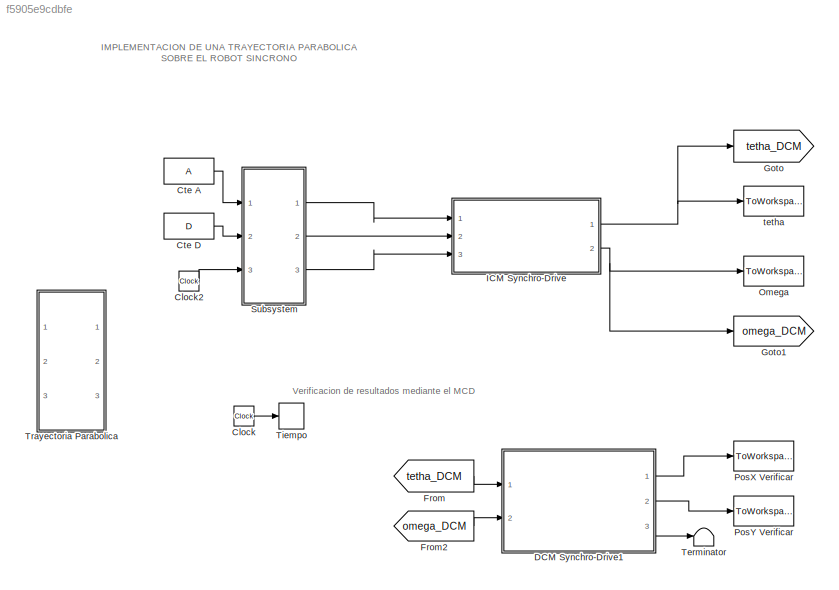
MODEL slx_f5905e9cdbfe
KIND model
CONFIG AbsTol = auto
CONFIG EnableMultiTasking = off
CONFIG FixedStep = auto
CONFIG MaxStep = auto
CONFIG MinStep = auto
CONFIG RelTol = 1e-3
CONFIG SampleTimeConstraint = Unconstrained
CONFIG Solver = VariableStepAuto
CONFIG SolverName = VariableStepAuto
CONFIG StartTime = 0.0
CONFIG StopTime = t_sim
BLOCK [Clock] Clock
BLOCK [Clock] Clock2
BLOCK [Constant] Cte A
  Value = A
BLOCK [Constant] Cte D
  Value = D
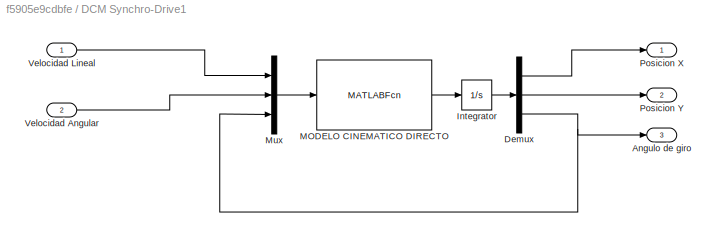
BLOCK [SubSystem] DCM Synchro-Drive1
  Ports = [2, 3]
  RequestExecContextInheritance = off
  Variant = off
BLOCK [Outport] DCM Synchro-Drive1/Angulo de giro
  IconDisplay = Port number
  Port = 3
BLOCK [Demux] DCM Synchro-Drive1/Demux
  DisplayOption = bar
  Outputs = 3
  Ports = [1, 3]
BLOCK [Integrator] DCM Synchro-Drive1/Integrator
  InitialCondition = pos_init
  Ports = [1, 1]
BLOCK [MATLABFcn] DCM Synchro-Drive1/MODELO CINEMATICO DIRECTO
  MATLABFcn = MCD_movil
  OutputDimensions = 3
  Ports = [1, 1]
BLOCK [Mux] DCM Synchro-Drive1/Mux
  DisplayOption = bar
  Inputs = 3
  Ports = [3, 1]
BLOCK [Outport] DCM Synchro-Drive1/Posicion X
  IconDisplay = Port number
BLOCK [Outport] DCM Synchro-Drive1/Posicion Y
  IconDisplay = Port number
  Port = 2
BLOCK [Inport] DCM Synchro-Drive1/Velocidad Angular
  IconDisplay = Port number
  Port = 2
BLOCK [Inport] DCM Synchro-Drive1/Velocidad Lineal
  IconDisplay = Port number
BLOCK [From] From
  GotoTag = tetha_DCM
  IconDisplay = Tag and signal name
BLOCK [From] From2
  GotoTag = omega_DCM
BLOCK [Goto] Goto
  GotoTag = tetha_DCM
BLOCK [Goto] Goto1
  GotoTag = omega_DCM
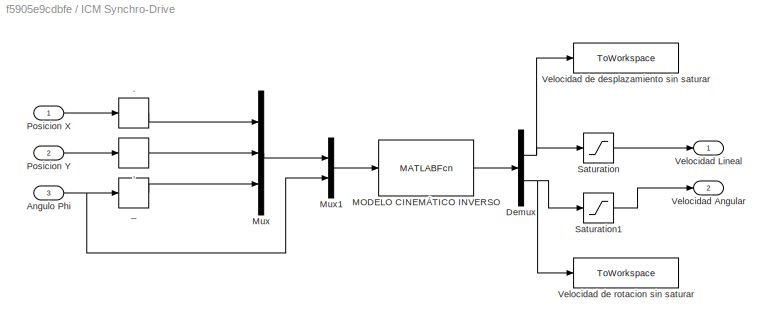
BLOCK [SubSystem] ICM Synchro-Drive
  Ports = [3, 2]
  RequestExecContextInheritance = off
  Variant = off
BLOCK [Inport] ICM Synchro-Drive/ Posicion X 
  IconDisplay = Port number
BLOCK [Derivative] ICM Synchro-Drive/,
BLOCK [Derivative] ICM Synchro-Drive/.
BLOCK [Inport] ICM Synchro-Drive/Angulo Phi
  IconDisplay = Port number
  Port = 3
BLOCK [Demux] ICM Synchro-Drive/Demux
  DisplayOption = bar
  Outputs = 2
  Ports = [1, 2]
BLOCK [MATLABFcn] ICM Synchro-Drive/MODELO CINEMÁTICO INVERSO
  MATLABFcn = MCI_movil
  OutputDimensions = 2
  Ports = [1, 1]
BLOCK [Mux] ICM Synchro-Drive/Mux
  DisplayOption = bar
  Inputs = 3
  Ports = [3, 1]
BLOCK [Mux] ICM Synchro-Drive/Mux1
  DisplayOption = bar
  Inputs = 2
  Ports = [2, 1]
BLOCK [Inport] ICM Synchro-Drive/Posicion Y
  IconDisplay = Port number
  Port = 2
BLOCK [Saturate] ICM Synchro-Drive/Saturation
  InputPortMap = u0
  LowerLimit = tetha_d_sat(1)
  Ports = [1, 1]
  UpperLimit = tetha_d_sat(2)
  ZeroCross = off
BLOCK [Saturate] ICM Synchro-Drive/Saturation1
  InputPortMap = u0
  LowerLimit = omega_sat(1)
  Ports = [1, 1]
  UpperLimit = omega_sat(2)
  ZeroCross = off
BLOCK [Outport] ICM Synchro-Drive/Velocidad Angular
  IconDisplay = Port number
  Port = 2
BLOCK [Outport] ICM Synchro-Drive/Velocidad Lineal
  IconDisplay = Port number
BLOCK [ToWorkspace] ICM Synchro-Drive/Velocidad de desplazamiento sin saturar
  FixptAsFi = on
  MaxDataPoints = inf
  Ports = [1]
  SampleTime = -1
  Save2DSignal = 3-D array (concatenate along third dimension)
  VariableName = V_despl_sinsat
BLOCK [ToWorkspace] ICM Synchro-Drive/Velocidad de rotacion sin saturar
  FixptAsFi = on
  MaxDataPoints = inf
  Ports = [1]
  SampleTime = -1
  Save2DSignal = 3-D array (concatenate along third dimension)
  VariableName = V_rot_sinsat
BLOCK [Derivative] ICM Synchro-Drive/_
BLOCK [ToWorkspace] Omega 
  FixptAsFi = on
  MaxDataPoints = inf
  Ports = [1]
  SampleTime = -1
  Save2DSignal = 3-D array (concatenate along third dimension)
  VariableName = omega
BLOCK [ToWorkspace] PosX Verificar
  FixptAsFi = on
  MaxDataPoints = inf
  Ports = [1]
  SampleTime = -1
  Save2DSignal = 3-D array (concatenate along third dimension)
  VariableName = posx_check
BLOCK [ToWorkspace] PosY Verificar
  FixptAsFi = on
  MaxDataPoints = inf
  Ports = [1]
  SampleTime = -1
  Save2DSignal = 3-D array (concatenate along third dimension)
  VariableName = posy_check
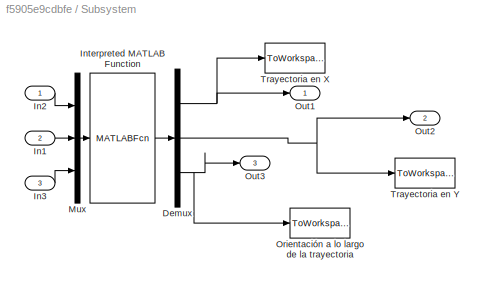
BLOCK [SubSystem] Subsystem
  Ports = [3, 3]
  RequestExecContextInheritance = off
  Variant = off
BLOCK [Demux] Subsystem/Demux
  DisplayOption = bar
  Outputs = 3
  Ports = [1, 3]
BLOCK [Inport] Subsystem/In1
  IconDisplay = Port number
  Port = 2
BLOCK [Inport] Subsystem/In2
  IconDisplay = Port number
BLOCK [Inport] Subsystem/In3
  IconDisplay = Port number
  Port = 3
BLOCK [MATLABFcn] Subsystem/Interpreted MATLAB Function
  MATLABFcn = tray_parab
  OutputDimensions = 3
  Ports = [1, 1]
BLOCK [Mux] Subsystem/Mux
  DisplayOption = bar
  Inputs = 3
  Ports = [3, 1]
BLOCK [ToWorkspace] Subsystem/Orientación a lo largo de la trayectoria
  FixptAsFi = on
  MaxDataPoints = inf
  Ports = [1]
  SampleTime = -1
  Save2DSignal = 3-D array (concatenate along third dimension)
  VariableName = trayec_phi
BLOCK [Outport] Subsystem/Out1
  IconDisplay = Port number
BLOCK [Outport] Subsystem/Out2
  IconDisplay = Port number
  Port = 2
BLOCK [Outport] Subsystem/Out3
  IconDisplay = Port number
  Port = 3
BLOCK [ToWorkspace] Subsystem/Trayectoria en X
  FixptAsFi = on
  MaxDataPoints = inf
  Ports = [1]
  SampleTime = -1
  Save2DSignal = 3-D array (concatenate along third dimension)
  VariableName = trayec_x
BLOCK [ToWorkspace] Subsystem/Trayectoria en Y
  FixptAsFi = on
  MaxDataPoints = inf
  Ports = [1]
  SampleTime = -1
  Save2DSignal = 3-D array (concatenate along third dimension)
  VariableName = trayec_y
BLOCK [Terminator] Terminator
BLOCK [ToWorkspace] Tiempo
  FixptAsFi = on
  MaxDataPoints = inf
  Ports = [1]
  SampleTime = -1
  Save2DSignal = 3-D array (concatenate along third dimension)
  VariableName = t
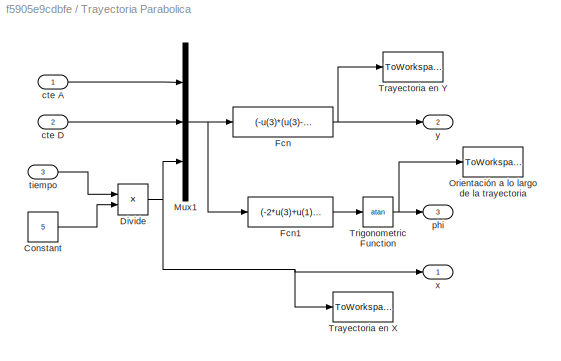
BLOCK [SubSystem] Trayectoria Parabolica 
  Commented = on
  Ports = [3, 3]
  RequestExecContextInheritance = off
  Variant = off
BLOCK [Constant] Trayectoria Parabolica /Constant
  Value = 5
BLOCK [Product] Trayectoria Parabolica /Divide
  InputSameDT = off
  Inputs = */
  OutDataTypeStr = Inherit: Inherit via internal rule
  Ports = [2, 1]
  RndMeth = Floor
  SaturateOnIntegerOverflow = off
BLOCK [Fcn] Trayectoria Parabolica /Fcn
  Expr = (-u(3)*(u(3)-u(1)))/u(2)
BLOCK [Fcn] Trayectoria Parabolica /Fcn1
  Expr = (-2*u(3)+u(1))/u(2)
BLOCK [Mux] Trayectoria Parabolica /Mux1
  DisplayOption = bar
  Inputs = 3
  Ports = [3, 1]
BLOCK [ToWorkspace] Trayectoria Parabolica /Orientación a lo largo de la trayectoria
  FixptAsFi = on
  MaxDataPoints = inf
  Ports = [1]
  SampleTime = -1
  Save2DSignal = 3-D array (concatenate along third dimension)
  VariableName = trayec_phi
BLOCK [ToWorkspace] Trayectoria Parabolica /Trayectoria en X
  FixptAsFi = on
  MaxDataPoints = inf
  Ports = [1]
  SampleTime = -1
  Save2DSignal = 3-D array (concatenate along third dimension)
  VariableName = trayec_x
BLOCK [ToWorkspace] Trayectoria Parabolica /Trayectoria en Y
  FixptAsFi = on
  MaxDataPoints = inf
  Ports = [1]
  SampleTime = -1
  Save2DSignal = 3-D array (concatenate along third dimension)
  VariableName = trayec_y
BLOCK [Trigonometry] Trayectoria Parabolica /Trigonometric Function
  Operator = atan
  OutputSignalType = real
  Ports = [1, 1]
BLOCK [Inport] Trayectoria Parabolica /cte A
  IconDisplay = Port number
BLOCK [Inport] Trayectoria Parabolica /cte D 
  IconDisplay = Port number
  Port = 2
BLOCK [Outport] Trayectoria Parabolica /phi 
  IconDisplay = Port number
  Port = 3
BLOCK [Inport] Trayectoria Parabolica /tiempo
  IconDisplay = Port number
  Port = 3
BLOCK [Outport] Trayectoria Parabolica /x 
  IconDisplay = Port number
BLOCK [Outport] Trayectoria Parabolica /y 
  IconDisplay = Port number
  Port = 2
BLOCK [ToWorkspace] tetha
  FixptAsFi = on
  MaxDataPoints = inf
  Ports = [1]
  SampleTime = -1
  Save2DSignal = 3-D array (concatenate along third dimension)
  VariableName = tetha_d
ANNOTATION (root): IMPLEMENTACION DE UNA TRAYECTORIA PARABOLICA SOBRE EL ROBOT SINCRONO
ANNOTATION (root): Verificacion de resultados mediante el MCD
LINE Clock2:1 -> Subsystem:3
LINE Clock:1 -> Tiempo:1
LINE Cte A:1 -> Subsystem:1
LINE Cte D:1 -> Subsystem:2
LINE DCM Synchro-Drive1/Demux:1 -> DCM Synchro-Drive1/Posicion X:1
LINE DCM Synchro-Drive1/Demux:2 -> DCM Synchro-Drive1/Posicion Y:1
NET DCM Synchro-Drive1/Demux:3 -> DCM Synchro-Drive1/Angulo de giro:1, DCM Synchro-Drive1/Mux:3
LINE DCM Synchro-Drive1/Integrator:1 -> DCM Synchro-Drive1/Demux:1
LINE DCM Synchro-Drive1/MODELO CINEMATICO DIRECTO:1 -> DCM Synchro-Drive1/Integrator:1
LINE DCM Synchro-Drive1/Mux:1 -> DCM Synchro-Drive1/MODELO CINEMATICO DIRECTO:1
LINE DCM Synchro-Drive1/Velocidad Angular:1 -> DCM Synchro-Drive1/Mux:2
LINE DCM Synchro-Drive1/Velocidad Lineal:1 -> DCM Synchro-Drive1/Mux:1
LINE DCM Synchro-Drive1:1 -> PosX Verificar:1
LINE DCM Synchro-Drive1:2 -> PosY Verificar:1
LINE DCM Synchro-Drive1:3 -> Terminator:1
LINE From2:1 -> DCM Synchro-Drive1:2
LINE From:1 -> DCM Synchro-Drive1:1
LINE ICM Synchro-Drive/ Posicion X :1 -> ICM Synchro-Drive/.:1
LINE ICM Synchro-Drive/,:1 -> ICM Synchro-Drive/Mux:2
LINE ICM Synchro-Drive/.:1 -> ICM Synchro-Drive/Mux:1
NET ICM Synchro-Drive/Angulo Phi:1 -> ICM Synchro-Drive/Mux1:2, ICM Synchro-Drive/_:1
NET ICM Synchro-Drive/Demux:1 -> ICM Synchro-Drive/Saturation:1, ICM Synchro-Drive/Velocidad de desplazamiento sin saturar:1
NET ICM Synchro-Drive/Demux:2 -> ICM Synchro-Drive/Saturation1:1, ICM Synchro-Drive/Velocidad de rotacion sin saturar:1
LINE ICM Synchro-Drive/MODELO CINEMÁTICO INVERSO:1 -> ICM Synchro-Drive/Demux:1
LINE ICM Synchro-Drive/Mux1:1 -> ICM Synchro-Drive/MODELO CINEMÁTICO INVERSO:1
LINE ICM Synchro-Drive/Mux:1 -> ICM Synchro-Drive/Mux1:1
LINE ICM Synchro-Drive/Posicion Y:1 -> ICM Synchro-Drive/,:1
LINE ICM Synchro-Drive/Saturation1:1 -> ICM Synchro-Drive/Velocidad Angular:1
LINE ICM Synchro-Drive/Saturation:1 -> ICM Synchro-Drive/Velocidad Lineal:1
LINE ICM Synchro-Drive/_:1 -> ICM Synchro-Drive/Mux:3
NET ICM Synchro-Drive:1 -> Goto:1, tetha:1
NET ICM Synchro-Drive:2 -> Goto1:1, Omega :1
NET Subsystem/Demux:1 -> Subsystem/Out1:1, Subsystem/Trayectoria en X:1
NET Subsystem/Demux:2 -> Subsystem/Out2:1, Subsystem/Trayectoria en Y:1
NET Subsystem/Demux:3 -> Subsystem/Orientación a lo largo de la trayectoria:1, Subsystem/Out3:1
LINE Subsystem/In1:1 -> Subsystem/Mux:2
LINE Subsystem/In2:1 -> Subsystem/Mux:1
LINE Subsystem/In3:1 -> Subsystem/Mux:3
LINE Subsystem/Interpreted MATLAB Function:1 -> Subsystem/Demux:1
LINE Subsystem/Mux:1 -> Subsystem/Interpreted MATLAB Function:1
LINE Subsystem:1 -> ICM Synchro-Drive:1
LINE Subsystem:2 -> ICM Synchro-Drive:2
LINE Subsystem:3 -> ICM Synchro-Drive:3
LINE Trayectoria Parabolica /Constant:1 -> Trayectoria Parabolica /Divide:2
NET Trayectoria Parabolica /Divide:1 -> Trayectoria Parabolica /Mux1:3, Trayectoria Parabolica /Trayectoria en X:1, Trayectoria Parabolica /x :1
LINE Trayectoria Parabolica /Fcn1:1 -> Trayectoria Parabolica /Trigonometric Function:1
NET Trayectoria Parabolica /Fcn:1 -> Trayectoria Parabolica /Trayectoria en Y:1, Trayectoria Parabolica /y :1
NET Trayectoria Parabolica /Mux1:1 -> Trayectoria Parabolica /Fcn1:1, Trayectoria Parabolica /Fcn:1
NET Trayectoria Parabolica /Trigonometric Function:1 -> Trayectoria Parabolica /Orientación a lo largo de la trayectoria:1, Trayectoria Parabolica /phi :1
LINE Trayectoria Parabolica /cte A:1 -> Trayectoria Parabolica /Mux1:1
LINE Trayectoria Parabolica /cte D :1 -> Trayectoria Parabolica /Mux1:2
LINE Trayectoria Parabolica /tiempo:1 -> Trayectoria Parabolica /Divide:1
note: NET lines group one-source signal fan-out (src -> all destinations, sorted); 1:1 wires keep LINE
